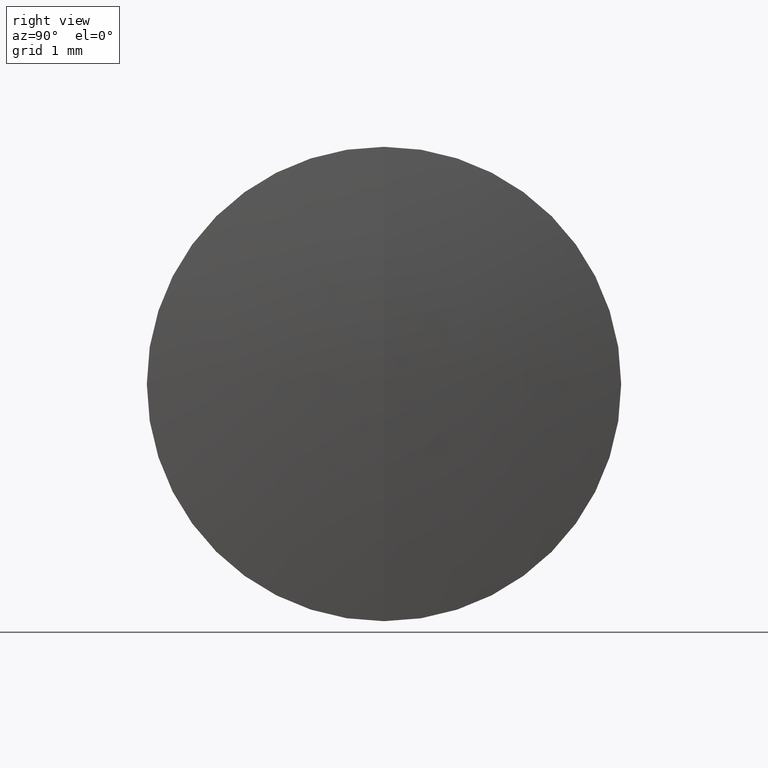
[diagram: clean part render]
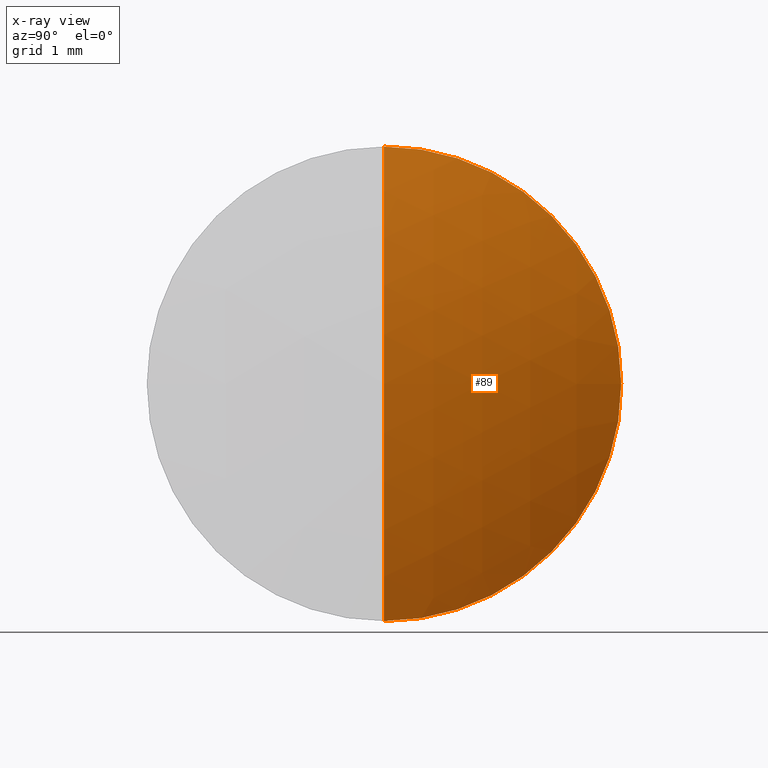
[diagram: x-ray — body ghosted, one internal face saturated and labeled with its STEP entity id]
A machine part, right view, then the same camera in x-ray: the body is ghosted and one INTERNAL B-rep face — a face not visible from any outside direction — is saturated and labeled: STEP entity #89.
In plain terms, the highlighted spherical surface has radius 6.7 mm.
Its self-contained STEP definition (entity closure, byte-faithful):
#16 = DIRECTION ( 'NONE',  ( -0.0000000000000000000, 1.000000000000000000, 1.224646799147353200E-016 ) ) ;
#21 = CARTESIAN_POINT ( 'NONE',  ( 261.6806597883319800, 3.888253587292846100E-016, -3.174999999999999800 ) ) ;
#23 = DIRECTION ( 'NONE',  ( 0.0000000000000000000, 0.0000000000000000000, 1.000000000000000000 ) ) ;
#25 = AXIS2_PLACEMENT_3D ( 'NONE', #310, #99, #23 ) ;
#34 = VERTEX_POINT ( 'NONE', #306 ) ;
#47 = ORIENTED_EDGE ( 'NONE', *, *, #250, .F. ) ;
#53 = FACE_OUTER_BOUND ( 'NONE', #265, .T. ) ;
#54 = ORIENTED_EDGE ( 'NONE', *, *, #245, .T. ) ;
#82 = AXIS2_PLACEMENT_3D ( 'NONE', #235, #16, #269 ) ;
#84 = CIRCLE ( 'NONE', #82, 6.700000000000274600 ) ;
#89 = ADVANCED_FACE ( 'NONE', ( #53 ), #194, .T. ) ;
#99 = DIRECTION ( 'NONE',  ( 0.0000000000000000000, 1.000000000000000000, 0.0000000000000000000 ) ) ;
#100 = DIRECTION ( 'NONE',  ( 0.0000000000000000000, 0.0000000000000000000, 1.000000000000000000 ) ) ;
#107 = DIRECTION ( 'NONE',  ( 0.0000000000000000000, -1.000000000000000000, 0.0000000000000000000 ) ) ;
#128 = CARTESIAN_POINT ( 'NONE',  ( 261.6806597883319800, 0.0000000000000000000, 0.0000000000000000000 ) ) ;
#137 = VERTEX_POINT ( 'NONE', #21 ) ;
#143 = CIRCLE ( 'NONE', #146, 3.174999999999999800 ) ;
#146 = AXIS2_PLACEMENT_3D ( 'NONE', #128, #290, #100 ) ;
#168 = EDGE_CURVE ( 'NONE', #34, #195, #223, .T. ) ;
#189 = ORIENTED_EDGE ( 'NONE', *, *, #168, .F. ) ;
#194 = SPHERICAL_SURFACE ( 'NONE', #25, 6.700000000000274600 ) ;
#195 = VERTEX_POINT ( 'NONE', #209 ) ;
#209 = CARTESIAN_POINT ( 'NONE',  ( 261.6806597883319800, 0.0000000000000000000, 3.174999999999999800 ) ) ;
#223 = CIRCLE ( 'NONE', #238, 6.700000000000274600 ) ;
#235 = CARTESIAN_POINT ( 'NONE',  ( 255.7807127546711300, 0.0000000000000000000, 0.0000000000000000000 ) ) ;
#238 = AXIS2_PLACEMENT_3D ( 'NONE', #275, #107, #299 ) ;
#245 = EDGE_CURVE ( 'NONE', #34, #137, #84, .T. ) ;
#250 = EDGE_CURVE ( 'NONE', #195, #137, #143, .T. ) ;
#265 = EDGE_LOOP ( 'NONE', ( #189, #54, #47 ) ) ;
#269 = DIRECTION ( 'NONE',  ( 0.0000000000000000000, -1.224646799147353200E-016, 1.000000000000000000 ) ) ;
#275 = CARTESIAN_POINT ( 'NONE',  ( 255.7807127546711300, 0.0000000000000000000, 0.0000000000000000000 ) ) ;
#290 = DIRECTION ( 'NONE',  ( -1.000000000000000000, -0.0000000000000000000, -0.0000000000000000000 ) ) ;
#299 = DIRECTION ( 'NONE',  ( 0.0000000000000000000, 0.0000000000000000000, -1.000000000000000000 ) ) ;
#306 = CARTESIAN_POINT ( 'NONE',  ( 262.4807127546714000, 0.0000000000000000000, 4.102566777143801400E-016 ) ) ;
#310 = CARTESIAN_POINT ( 'NONE',  ( 255.7807127546711300, 0.0000000000000000000, 0.0000000000000000000 ) ) ;